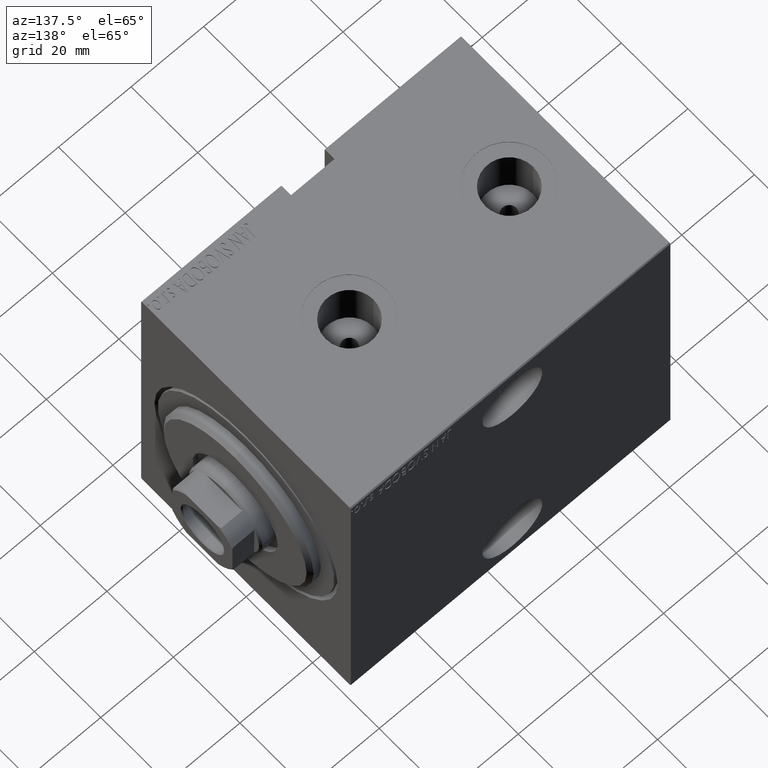
[diagram: clean part render]
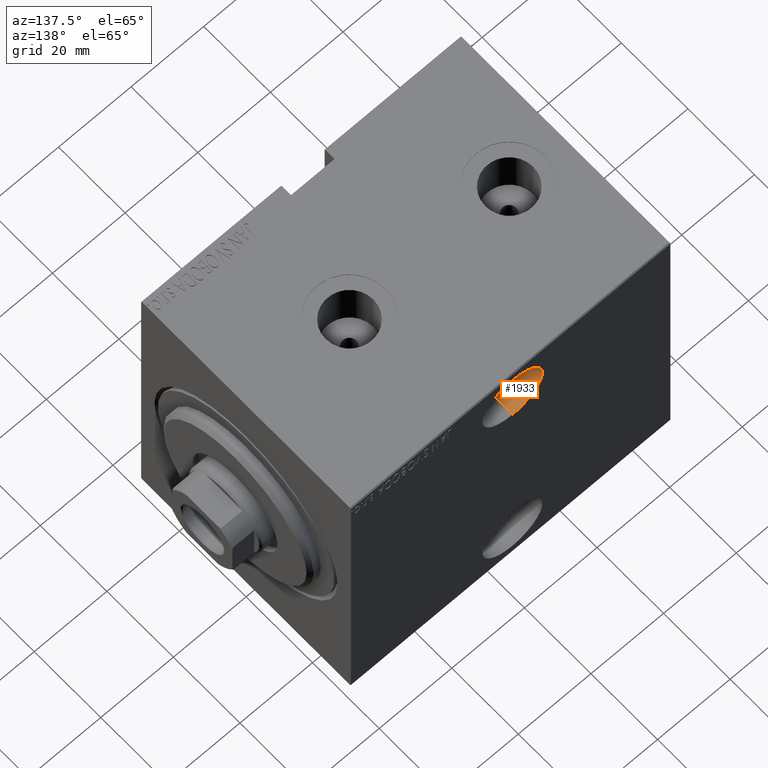
[diagram: same view with one face highlighted and labeled with its STEP entity id]
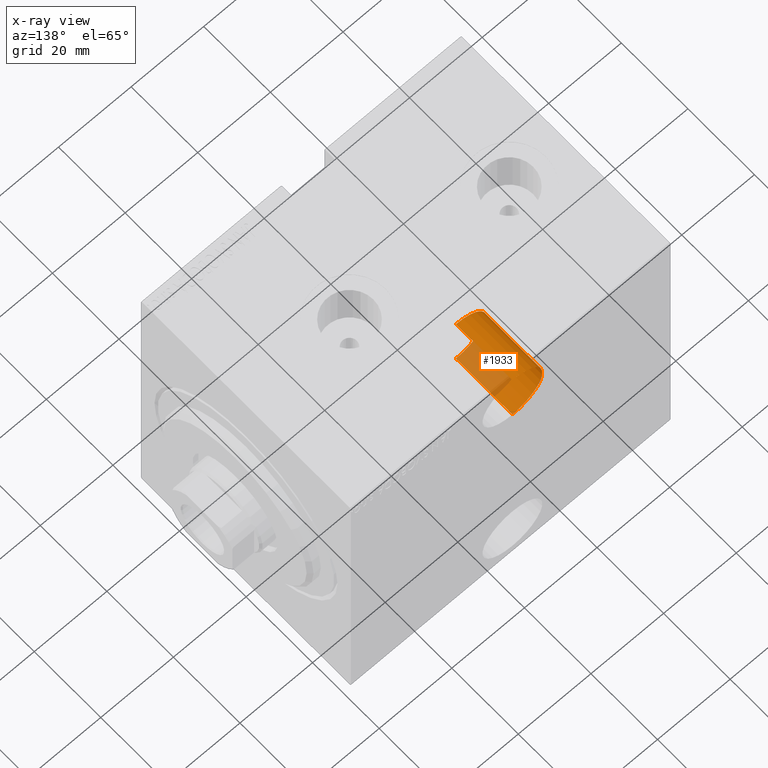
[diagram: x-ray of the same camera — body ghosted, the highlighted face saturated]
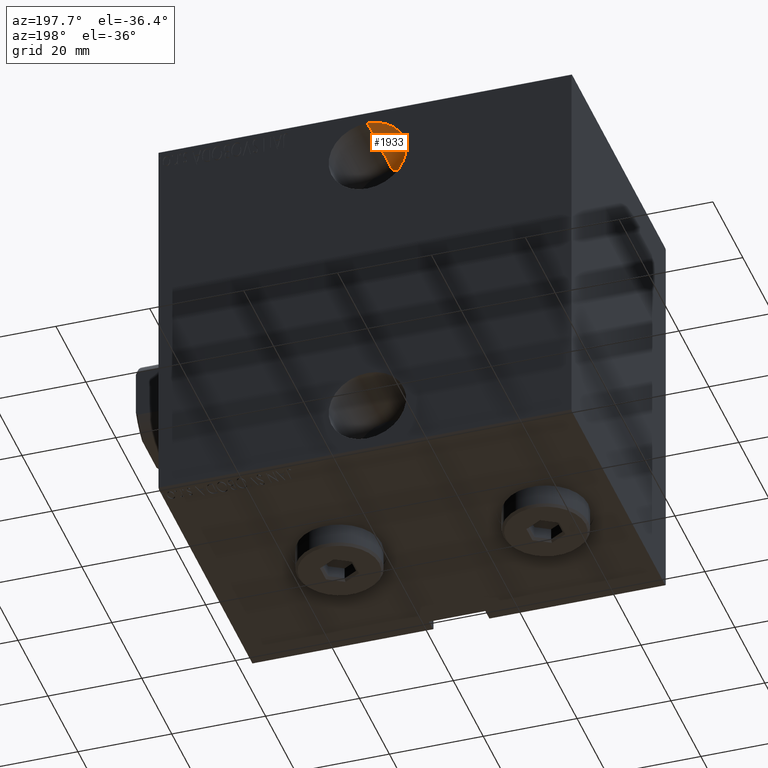
[diagram: same view with one face highlighted and labeled with its STEP entity id]
A machine part, auxiliary view. The second image highlights one B-rep face of the part: STEP entity #1933.
The next image is the same camera in x-ray: the body ghosted, the highlighted face saturated — about 28% of this face is hidden behind the body in this view.
A second angle (auxiliary view) of the same face is appended — the face is thin or edge-on in the first view.
In plain terms, the highlighted cylindrical surface (partial cylindrical patch) has radius 8.25 mm, axis along (0, 1, 0).
Its self-contained STEP definition (entity closure, byte-faithful):
#659 = VERTEX_POINT ( 'NONE', #11689 ) ;
#1165 = VERTEX_POINT ( 'NONE', #15521 ) ;
#1712 = LINE ( 'NONE', #28902, #24887 ) ;
#1933 = ADVANCED_FACE ( 'NONE', ( #22692 ), #2197, .F. ) ;
#2197 = CYLINDRICAL_SURFACE ( 'NONE', #9195, 8.250000000000003553 ) ;
#4647 = AXIS2_PLACEMENT_3D ( 'NONE', #40781, #26316, #19846 ) ;
#6660 = EDGE_CURVE ( 'NONE', #27232, #659, #1712, .T. ) ;
#7830 = CARTESIAN_POINT ( 'NONE',  ( 44.50000000000002132, -14.49999999999998757, 23.24999999999999645 ) ) ;
#9195 = AXIS2_PLACEMENT_3D ( 'NONE', #35842, #32718, #25819 ) ;
#10472 = CARTESIAN_POINT ( 'NONE',  ( 44.50000000000002132, -14.49999999999998401, 39.75000000000000711 ) ) ;
#11689 = CARTESIAN_POINT ( 'NONE',  ( 44.50000000000002132, -31.49999999999998579, 39.75000000000000711 ) ) ;
#13353 = DIRECTION ( 'NONE',  ( 0.000000000000000000, 0.000000000000000000, -1.000000000000000000 ) ) ;
#14746 = ORIENTED_EDGE ( 'NONE', *, *, #41421, .T. ) ;
#15521 = CARTESIAN_POINT ( 'NONE',  ( 44.50000000000002132, -31.49999999999998579, 23.24999999999999645 ) ) ;
#15589 = ORIENTED_EDGE ( 'NONE', *, *, #37327, .T. ) ;
#18733 = AXIS2_PLACEMENT_3D ( 'NONE', #43865, #20710, #13353 ) ;
#19846 = DIRECTION ( 'NONE',  ( 0.000000000000000000, -2.102695122396128930E-16, -1.000000000000000000 ) ) ;
#20710 = DIRECTION ( 'NONE',  ( 0.000000000000000000, -1.000000000000000000, 1.963837897332234442E-16 ) ) ;
#21417 = DIRECTION ( 'NONE',  ( -0.000000000000000000, -1.000000000000000000, 1.963837897332234688E-16 ) ) ;
#22422 = VECTOR ( 'NONE', #21417, 1000.000000000000000 ) ;
#22692 = FACE_OUTER_BOUND ( 'NONE', #43748, .T. ) ;
#22978 = CIRCLE ( 'NONE', #18733, 8.250000000000003553 ) ;
#23854 = CIRCLE ( 'NONE', #4647, 8.250000000000003553 ) ;
#24887 = VECTOR ( 'NONE', #42475, 1000.000000000000000 ) ;
#25819 = DIRECTION ( 'NONE',  ( 0.000000000000000000, -2.102695122396128930E-16, -1.000000000000000000 ) ) ;
#26316 = DIRECTION ( 'NONE',  ( 0.000000000000000000, -1.000000000000000000, 1.963837897332234442E-16 ) ) ;
#27232 = VERTEX_POINT ( 'NONE', #10472 ) ;
#28902 = CARTESIAN_POINT ( 'NONE',  ( 44.50000000000002132, -14.49999999999998401, 39.75000000000000711 ) ) ;
#30138 = ORIENTED_EDGE ( 'NONE', *, *, #6660, .F. ) ;
#30399 = ORIENTED_EDGE ( 'NONE', *, *, #43235, .F. ) ;
#32718 = DIRECTION ( 'NONE',  ( -0.000000000000000000, -1.000000000000000000, 1.963837897332234688E-16 ) ) ;
#32723 = CARTESIAN_POINT ( 'NONE',  ( 44.50000000000002132, -14.49999999999998757, 23.24999999999999645 ) ) ;
#35842 = CARTESIAN_POINT ( 'NONE',  ( 44.50000000000002132, -14.49999999999998579, 31.50000000000000000 ) ) ;
#37327 = EDGE_CURVE ( 'NONE', #1165, #659, #22978, .T. ) ;
#38328 = LINE ( 'NONE', #7830, #22422 ) ;
#40402 = VERTEX_POINT ( 'NONE', #32723 ) ;
#40781 = CARTESIAN_POINT ( 'NONE',  ( 44.50000000000002132, -14.49999999999998579, 31.50000000000000000 ) ) ;
#41421 = EDGE_CURVE ( 'NONE', #40402, #1165, #38328, .T. ) ;
#42475 = DIRECTION ( 'NONE',  ( -0.000000000000000000, -1.000000000000000000, 1.963837897332234688E-16 ) ) ;
#43235 = EDGE_CURVE ( 'NONE', #40402, #27232, #23854, .T. ) ;
#43748 = EDGE_LOOP ( 'NONE', ( #30138, #30399, #14746, #15589 ) ) ;
#43865 = CARTESIAN_POINT ( 'NONE',  ( 44.50000000000002132, -31.49999999999998579, 31.50000000000000000 ) ) ;